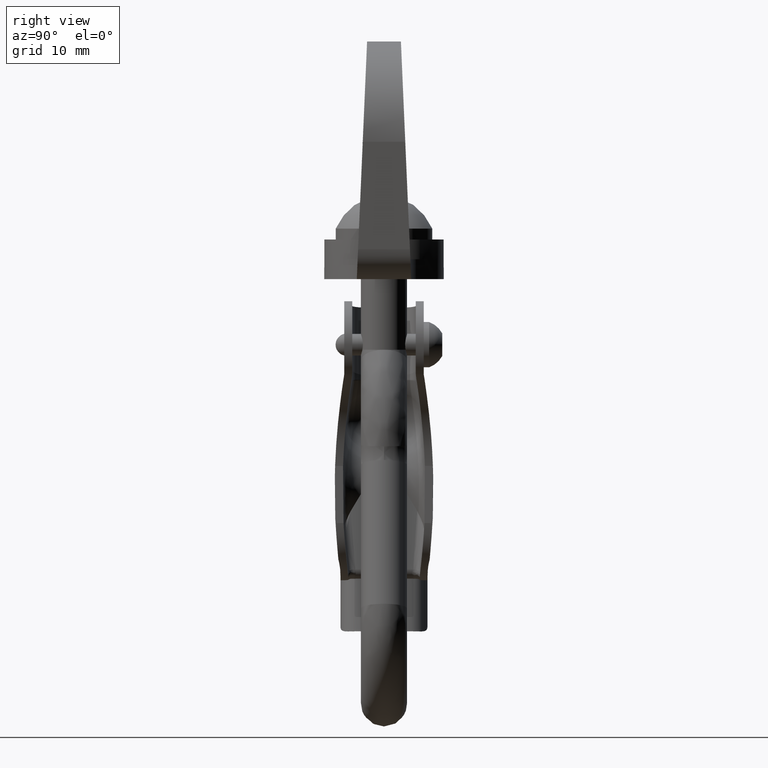
[diagram: clean part render]
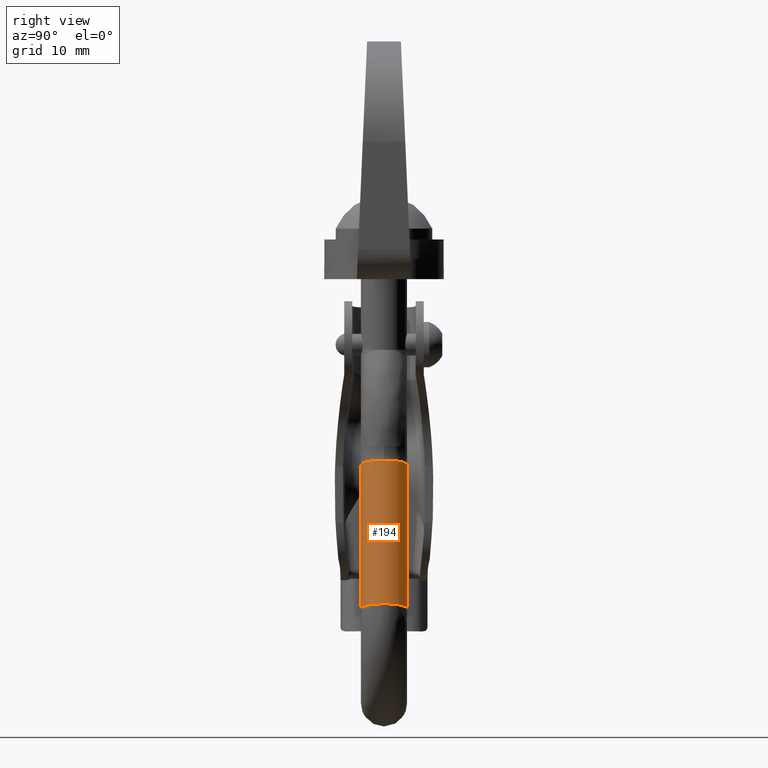
[diagram: same view with one face highlighted and labeled with its STEP entity id]
A machine part, right view. The second image highlights one B-rep face of the part: STEP entity #194.
In plain terms, the highlighted cylindrical surface (edge-blend (fillet) strip) has radius 3.5 mm, axis along (-0.2015, 0, 0.9795).
Its self-contained STEP definition (entity closure, byte-faithful):
#194=ADVANCED_FACE('',(#767),#766,.T.);
#766=CYLINDRICAL_SURFACE('',#2363,3.50000000000E+00);
#767=FACE_OUTER_BOUND('',#2364,.T.);
#2360=CARTESIAN_POINT('',(3.86911109896E-02,2.27248775353E-13,7.96081305169E-03));
#2361=DIRECTION('',(-2.01531393974E-01,-0.00000000000E+00,9.79482055600E-01));
#2362=DIRECTION('',(-9.79482055600E-01,1.22464679915E-16,-2.01531393974E-01));
#2363=AXIS2_PLACEMENT_3D('',#2360,#2361,#2362);
#2364=EDGE_LOOP('',(#4173,#4174,#4175,#4176,#4177));
#4173=ORIENTED_EDGE('',*,*,#4939,.T.);
#4174=ORIENTED_EDGE('',*,*,#4940,.T.);
#4175=ORIENTED_EDGE('',*,*,#4902,.F.);
#4176=ORIENTED_EDGE('',*,*,#4938,.F.);
#4177=ORIENTED_EDGE('',*,*,#4912,.F.);
#4902=EDGE_CURVE('',#5968,#5975,#5976,.T.);
#4912=EDGE_CURVE('',#6038,#6045,#6046,.T.);
#4938=EDGE_CURVE('',#6045,#5968,#6217,.T.);
#4939=EDGE_CURVE('',#6038,#6223,#6224,.T.);
#4940=EDGE_CURVE('',#6223,#5975,#6230,.T.);
#5968=VERTEX_POINT('',#8663);
#5975=VERTEX_POINT('',#8668);
#5976=LINE('',#8669,#8670);
#6038=VERTEX_POINT('',#8711);
#6045=VERTEX_POINT('',#8716);
#6046=LINE('',#8717,#8718);
#6217=CIRCLE('',#8867,3.50000000000E+00);
#6223=VERTEX_POINT('',#8868);
#6224=CIRCLE('',#8872,3.50000000000E+00);
#6230=CIRCLE('',#8876,3.50000000000E+00);
#8663=CARTESIAN_POINT('',(8.27548691420E+00,-3.50000000000E+00,-4.00244804152E+01));
#8668=CARTESIAN_POINT('',(3.79059038320E+00,-3.50000000000E+00,-1.82270046635E+01));
#8669=CARTESIAN_POINT('',(8.27548691420E+00,-3.50000000000E+00,-4.00244804152E+01));
#8670=VECTOR('',#8671,2.22540838059E+01);
#8671=DIRECTION('',(-2.01531393974E-01,0.00000000000E+00,9.79482055600E-01));
#8711=CARTESIAN_POINT('',(3.79059038320E+00,3.50000000000E+00,-1.82270046635E+01));
#8716=CARTESIAN_POINT('',(8.27548691420E+00,3.50000000000E+00,-4.00244804152E+01));
#8717=CARTESIAN_POINT('',(3.79059038320E+00,3.50000000000E+00,-1.82270046635E+01));
#8718=VECTOR('',#8719,2.22540838059E+01);
#8719=DIRECTION('',(2.01531393974E-01,0.00000000000E+00,-9.79482055600E-01));
#8864=CARTESIAN_POINT('',(8.27548691420E+00,2.27248775353E-13,-4.00244804152E+01));
#8865=DIRECTION('',(2.01531393974E-01,0.00000000000E+00,-9.79482055600E-01));
#8866=DIRECTION('',(-1.79921992311E-16,1.00000000000E+00,-3.70194938332E-17));
#8867=AXIS2_PLACEMENT_3D('',#8864,#8865,#8866);
#8868=CARTESIAN_POINT('',(7.21877757780E+00,5.81849101781E-10,-1.75216447846E+01));
#8869=CARTESIAN_POINT('',(3.79059038320E+00,2.27248775353E-13,-1.82270046635E+01));
#8870=DIRECTION('',(2.01531393974E-01,-6.16297582204E-33,-9.79482055600E-01));
#8871=DIRECTION('',(-1.79921992311E-16,1.00000000000E+00,-3.70194938332E-17));
#8872=AXIS2_PLACEMENT_3D('',#8869,#8870,#8871);
#8873=CARTESIAN_POINT('',(3.79059038320E+00,2.27248775353E-13,-1.82270046635E+01));
#8874=DIRECTION('',(2.01531393974E-01,-6.16297582204E-33,-9.79482055600E-01));
#8875=DIRECTION('',(-1.79921992311E-16,1.00000000000E+00,-3.70194938332E-17));
#8876=AXIS2_PLACEMENT_3D('',#8873,#8874,#8875);